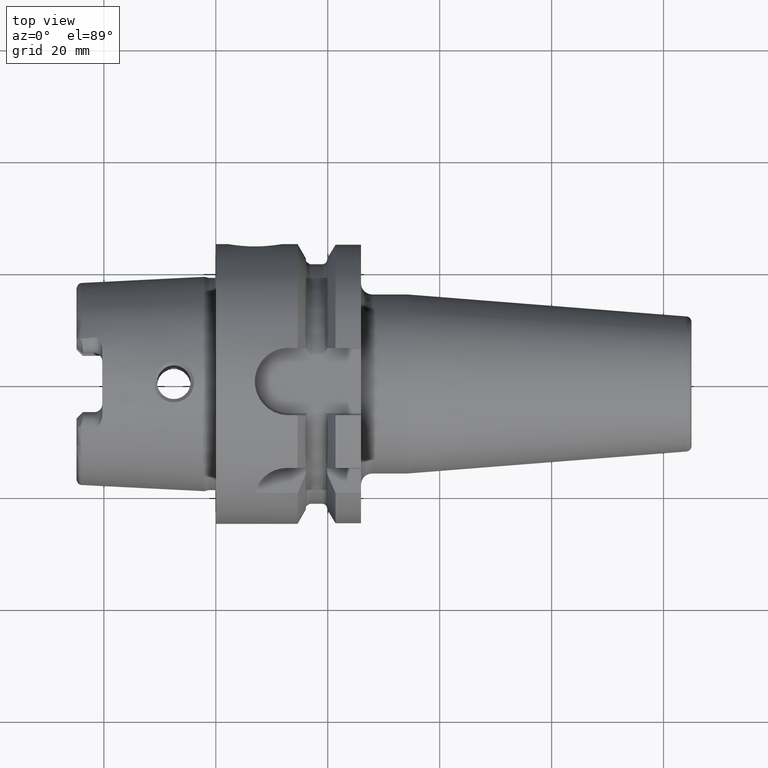
[diagram: clean part render]
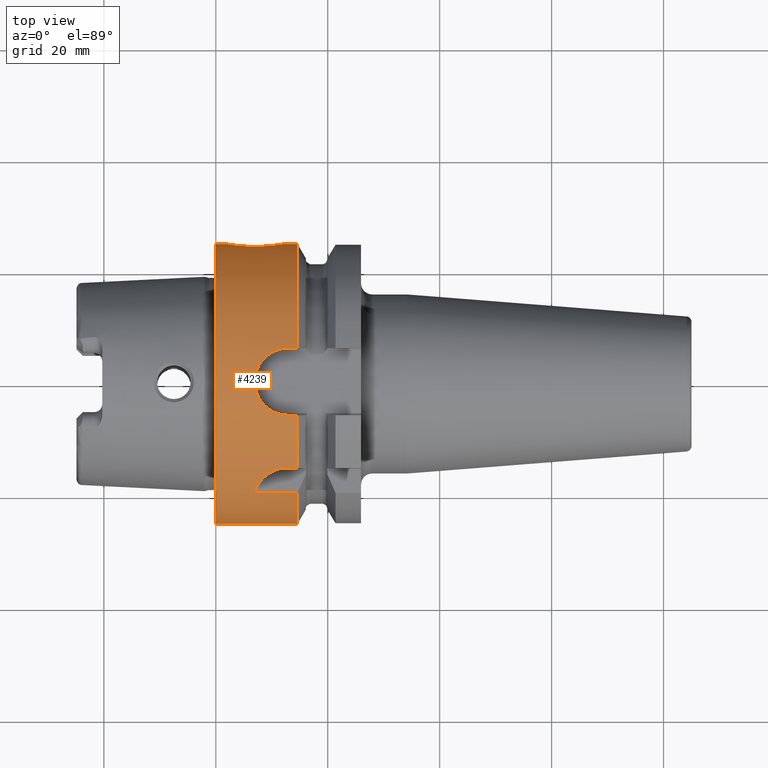
[diagram: same view with one face highlighted and labeled with its STEP entity id]
A machine part, top view. The second image highlights one B-rep face of the part: STEP entity #4239.
In plain terms, the highlighted cylindrical surface (partial cylindrical patch) has radius 25 mm, axis along (1, 0, 0).
Its self-contained STEP definition (entity closure, byte-faithful):
#867=CARTESIAN_POINT('',(0.E0,0.E0,0.E0));
#868=DIRECTION('',(1.E0,0.E0,0.E0));
#869=DIRECTION('',(0.E0,1.E0,0.E0));
#870=AXIS2_PLACEMENT_3D('',#867,#868,#869);
#887=CARTESIAN_POINT('',(1.2E1,2.5E1,1.526170039412E-14));
#888=CARTESIAN_POINT('',(1.2E1,2.5E1,1.396361669566E-1));
#889=CARTESIAN_POINT('',(1.198839559876E1,2.499767503671E1,4.188551199645E-1));
#890=CARTESIAN_POINT('',(1.193487591412E1,2.498702525719E1,8.411355470880E-1));
#891=CARTESIAN_POINT('',(1.184588884629E1,2.496956318530E1,1.255556682962E0));
#892=CARTESIAN_POINT('',(1.172437073918E1,2.494621805665E1,1.654326844388E0));
#893=CARTESIAN_POINT('',(1.157233803758E1,2.491780457859E1,2.037765396024E0));
#894=CARTESIAN_POINT('',(1.137826090774E1,2.488280033899E1,2.428957637124E0));
#895=CARTESIAN_POINT('',(1.112593169286E1,2.483941608179E1,2.839794746863E0));
#896=CARTESIAN_POINT('',(1.078966073596E1,2.478533925893E1,3.279662427458E0));
#897=CARTESIAN_POINT('',(1.034920049245E1,2.472123687765E1,3.731964970310E0));
#898=CARTESIAN_POINT('',(9.810568187861E0,2.465328264736E1,4.155812761009E0));
#899=CARTESIAN_POINT('',(9.171139758796E0,2.458785937757E1,4.524792131194E0));
#900=CARTESIAN_POINT('',(8.466271578711E0,2.453509771841E1,4.800556799822E0));
#901=CARTESIAN_POINT('',(7.720798631611E0,2.450179247679E1,4.966438431029E0));
#902=CARTESIAN_POINT('',(7.239977653175E0,2.449489742783E1,5.E0));
#903=CARTESIAN_POINT('',(7.E0,2.449489742783E1,5.E0));
#905=CARTESIAN_POINT('',(1.460806716851E1,0.E0,0.E0));
#906=DIRECTION('',(1.E0,0.E0,0.E0));
#907=DIRECTION('',(0.E0,1.E0,0.E0));
#908=AXIS2_PLACEMENT_3D('',#905,#906,#907);
#910=DIRECTION('',(1.E0,0.E0,0.E0));
#911=VECTOR('',#910,1.640567168511E0);
#912=CARTESIAN_POINT('',(1.29675E1,6.0175E0,2.426498905316E1));
#913=LINE('',#912,#911);
#914=CARTESIAN_POINT('',(1.29675E1,-6.0175E0,2.426498905316E1));
#915=CARTESIAN_POINT('',(1.267001977106E1,-6.0175E0,2.426498905316E1));
#916=CARTESIAN_POINT('',(1.208014574037E1,-5.974264320289E0,2.427577944586E1));
#917=CARTESIAN_POINT('',(1.119398879761E1,-5.773912792451E0,2.432458918315E1));
#918=CARTESIAN_POINT('',(1.035629865204E1,-5.446281307968E0,2.440062930721E1));
#919=CARTESIAN_POINT('',(9.570549924165E0,-4.994525095911E0,2.449784203663E1));
#920=CARTESIAN_POINT('',(8.859335655751E0,-4.428424444987E0,2.460735616990E1));
#921=CARTESIAN_POINT('',(8.237705259596E0,-3.756976706063E0,2.471958631858E1));
#922=CARTESIAN_POINT('',(7.729434557517E0,-3.007811120107E0,2.482263381281E1));
#923=CARTESIAN_POINT('',(7.337924838101E0,-2.188228602670E0,2.490880688784E1));
#924=CARTESIAN_POINT('',(7.076723724624E0,-1.332816222257E0,2.496957642541E1));
#925=CARTESIAN_POINT('',(6.944313494671E0,-4.437817595373E-1,2.500135908732E1));
#926=CARTESIAN_POINT('',(6.944380657024E0,4.447153631879E-1,2.500134275233E1));
#927=CARTESIAN_POINT('',(7.076937145034E0,1.333751794457E0,2.496952581905E1));
#928=CARTESIAN_POINT('',(7.338254277846E0,2.189079804056E0,2.490873170650E1));
#929=CARTESIAN_POINT('',(7.729918562096E0,3.008648084777E0,2.482253139083E1));
#930=CARTESIAN_POINT('',(8.238250048826E0,3.757671688176E0,2.471948033175E1));
#931=CARTESIAN_POINT('',(8.860113884246E0,4.429136984953E0,2.460722669885E1));
#932=CARTESIAN_POINT('',(9.571194326808E0,4.994971608218E0,2.449775036144E1));
#933=CARTESIAN_POINT('',(1.035742514871E1,5.446831304653E0,2.440050633562E1));
#934=CARTESIAN_POINT('',(1.119482197413E1,5.774135809015E0,2.432453475726E1));
#935=CARTESIAN_POINT('',(1.208047877402E1,5.974292572348E0,2.427577245256E1));
#936=CARTESIAN_POINT('',(1.267012654017E1,6.0175E0,2.426498905316E1));
#937=CARTESIAN_POINT('',(1.29675E1,6.0175E0,2.426498905316E1));
#939=DIRECTION('',(1.E0,0.E0,0.E0));
#940=VECTOR('',#939,1.640567168511E0);
#941=CARTESIAN_POINT('',(1.29675E1,-6.0175E0,2.426498905316E1));
#942=LINE('',#941,#940);
#943=CARTESIAN_POINT('',(1.460806716851E1,0.E0,0.E0));
#944=DIRECTION('',(1.E0,0.E0,0.E0));
#945=DIRECTION('',(0.E0,-2.407E-1,9.705995621264E-1));
#946=AXIS2_PLACEMENT_3D('',#943,#944,#945);
#948=DIRECTION('',(1.E0,0.E0,0.E0));
#949=VECTOR('',#948,1.914380895625E0);
#950=CARTESIAN_POINT('',(1.269368627289E1,-1.535E1,1.973265060756E1));
#951=LINE('',#950,#949);
#952=CARTESIAN_POINT('',(7.014312287542E0,-1.941487888938E1,1.575000188791E1));
#953=CARTESIAN_POINT('',(7.105107318717E0,-1.914840507931E1,1.607848164927E1));
#954=CARTESIAN_POINT('',(7.322191474670E0,-1.863555411155E1,1.667660984110E1));
#955=CARTESIAN_POINT('',(7.728432422807E0,-1.795161569204E1,1.740753268153E1));
#956=CARTESIAN_POINT('',(8.205411309503E0,-1.734358110205E1,1.801135406510E1));
#957=CARTESIAN_POINT('',(8.746642197198E0,-1.681053757601E1,1.850812745683E1));
#958=CARTESIAN_POINT('',(9.330788720679E0,-1.636318781531E1,1.890349167782E1));
#959=CARTESIAN_POINT('',(9.958756853740E0,-1.599312537632E1,1.921667707056E1));
#960=CARTESIAN_POINT('',(1.061916482915E1,-1.570515606782E1,1.945200283558E1));
#961=CARTESIAN_POINT('',(1.129301090073E1,-1.550158905615E1,1.961414253632E1));
#962=CARTESIAN_POINT('',(1.199118851982E1,-1.537734260728E1,1.971142996702E1));
#963=CARTESIAN_POINT('',(1.245842128019E1,-1.535E1,1.973265060756E1));
#964=CARTESIAN_POINT('',(1.269368627289E1,-1.535E1,1.973265060756E1));
#966=DIRECTION('',(1.E0,6.189435976035E-8,-2.143060964371E-7));
#967=VECTOR('',#966,7.275739392870E0);
#968=CARTESIAN_POINT('',(7.332327775641E0,-1.973265105789E1,1.535000155924E1));
#969=LINE('',#968,#967);
#970=CARTESIAN_POINT('',(1.460806716851E1,0.E0,0.E0));
#971=DIRECTION('',(1.E0,0.E0,0.E0));
#972=DIRECTION('',(0.E0,-7.893060243024E-1,6.14E-1));
#973=AXIS2_PLACEMENT_3D('',#970,#971,#972);
#975=CARTESIAN_POINT('',(7.E0,2.449489742783E1,5.E0));
#976=CARTESIAN_POINT('',(6.761456629891E0,2.449489742783E1,5.E0));
#977=CARTESIAN_POINT('',(6.284099558964E0,2.450171778544E1,4.966797325618E0));
#978=CARTESIAN_POINT('',(5.546742600617E0,2.453440702590E1,4.804016519566E0));
#979=CARTESIAN_POINT('',(4.849527951524E0,2.458610035104E1,4.534169510600E0));
#980=CARTESIAN_POINT('',(4.214625421388E0,2.465043937623E1,4.172421115045E0));
#981=CARTESIAN_POINT('',(3.675906642440E0,2.471783362875E1,3.754264982352E0));
#982=CARTESIAN_POINT('',(3.232294856577E0,2.478197114054E1,3.304945144176E0));
#983=CARTESIAN_POINT('',(2.891885681669E0,2.483644711618E1,2.865655033406E0));
#984=CARTESIAN_POINT('',(2.635677379664E0,2.488034059450E1,2.454109288364E0));
#985=CARTESIAN_POINT('',(2.437783056705E0,2.491594110500E1,2.060613876008E0));
#986=CARTESIAN_POINT('',(2.282268438507E0,2.494495577226E1,1.673589009772E0));
#987=CARTESIAN_POINT('',(2.157746089973E0,2.496885447423E1,1.270094617234E0));
#988=CARTESIAN_POINT('',(2.066662314600E0,2.498672004420E1,8.509436418297E-1));
#989=CARTESIAN_POINT('',(2.011881569252E0,2.499761939888E1,4.238045504715E-1));
#990=CARTESIAN_POINT('',(2.E0,2.5E1,1.412957668624E-1));
#991=CARTESIAN_POINT('',(2.E0,2.5E1,2.455170019084E-14));
#1083=DIRECTION('',(-1.E0,0.E0,-1.125531109613E-14));
#1084=VECTOR('',#1083,2.E0);
#1085=CARTESIAN_POINT('',(2.E0,2.5E1,2.455170019084E-14));
#1086=LINE('',#1085,#1084);
#1087=DIRECTION('',(-1.E0,0.E0,0.E0));
#1088=VECTOR('',#1087,1.460806716851E1);
#1089=CARTESIAN_POINT('',(1.460806716851E1,-2.5E1,0.E0));
#1090=LINE('',#1089,#1088);
#1144=DIRECTION('',(-1.E0,0.E0,0.E0));
#1145=VECTOR('',#1144,2.608067168511E0);
#1146=CARTESIAN_POINT('',(1.460806716851E1,2.5E1,0.E0));
#1147=LINE('',#1146,#1145);
#1172=CARTESIAN_POINT('',(1.460806716851E1,-6.0175E0,2.426498905316E1));
#1451=CARTESIAN_POINT('',(1.460806716851E1,6.0175E0,2.426498905316E1));
#1740=CARTESIAN_POINT('',(1.460806716851E1,-1.973265060756E1,1.535E1));
#1778=CARTESIAN_POINT('',(7.332327775641E0,-1.973265105789E1,1.535000155924E1));
#1779=CARTESIAN_POINT('',(7.295780106495E0,-1.969754499718E1,1.539513091624E1));
#1780=CARTESIAN_POINT('',(7.223506935393E0,-1.962718499079E1,1.548493811909E1));
#1781=CARTESIAN_POINT('',(7.117483182884E0,-1.952121773706E1,1.561831135207E1));
#1782=CARTESIAN_POINT('',(7.048432084530E0,-1.945036301196E1,1.570626094349E1));
#1783=CARTESIAN_POINT('',(7.014312287542E0,-1.941487888938E1,1.575000188791E1));
#1808=CARTESIAN_POINT('',(1.460806716851E1,-1.535E1,1.973265060756E1));
#2935=VERTEX_POINT('',#1172);
#2946=VERTEX_POINT('',#1451);
#3013=VERTEX_POINT('',#1740);
#3017=VERTEX_POINT('',#1808);
#3030=CARTESIAN_POINT('',(1.29675E1,6.0175E0,2.426498905316E1));
#3031=VERTEX_POINT('',#3030);
#3032=CARTESIAN_POINT('',(1.29675E1,-6.0175E0,2.426498905316E1));
#3033=VERTEX_POINT('',#3032);
#3074=CARTESIAN_POINT('',(7.014310733153E0,-1.941487894986E1,1.575001002367E1));
#3076=VERTEX_POINT('',#3074);
#3078=CARTESIAN_POINT('',(7.332335239587E0,-1.973265330952E1,1.535E1));
#3080=VERTEX_POINT('',#3078);
#3082=CARTESIAN_POINT('',(1.269368627289E1,-1.535E1,1.973265060756E1));
#3083=VERTEX_POINT('',#3082);
#3104=CARTESIAN_POINT('',(0.E0,2.5E1,0.E0));
#3105=CARTESIAN_POINT('',(0.E0,-2.5E1,0.E0));
#3106=VERTEX_POINT('',#3104);
#3107=VERTEX_POINT('',#3105);
#3108=CARTESIAN_POINT('',(1.460806716851E1,2.5E1,0.E0));
#3109=VERTEX_POINT('',#3108);
#3110=CARTESIAN_POINT('',(1.460806716851E1,-2.5E1,0.E0));
#3111=VERTEX_POINT('',#3110);
#3180=CARTESIAN_POINT('',(7.E0,2.449489742783E1,5.E0));
#3181=VERTEX_POINT('',#3180);
#3208=VERTEX_POINT('',#887);
#3209=VERTEX_POINT('',#991);
#4201=CARTESIAN_POINT('',(-2.74425E1,0.E0,0.E0));
#4202=DIRECTION('',(1.E0,0.E0,0.E0));
#4203=DIRECTION('',(0.E0,-1.E0,0.E0));
#4204=AXIS2_PLACEMENT_3D('',#4201,#4202,#4203);
#4205=CYLINDRICAL_SURFACE('',#4204,2.5E1);
#4207=ORIENTED_EDGE('',*,*,#4206,.F.);
#4209=ORIENTED_EDGE('',*,*,#4208,.F.);
#4211=ORIENTED_EDGE('',*,*,#4210,.T.);
#4213=ORIENTED_EDGE('',*,*,#4212,.F.);
#4215=ORIENTED_EDGE('',*,*,#4214,.F.);
#4217=ORIENTED_EDGE('',*,*,#4216,.T.);
#4219=ORIENTED_EDGE('',*,*,#4218,.T.);
#4221=ORIENTED_EDGE('',*,*,#4220,.F.);
#4223=ORIENTED_EDGE('',*,*,#4222,.F.);
#4225=ORIENTED_EDGE('',*,*,#4224,.F.);
#4227=ORIENTED_EDGE('',*,*,#4226,.T.);
#4229=ORIENTED_EDGE('',*,*,#4228,.T.);
#4231=ORIENTED_EDGE('',*,*,#4230,.T.);
#4232=ORIENTED_EDGE('',*,*,#4190,.F.);
#4234=ORIENTED_EDGE('',*,*,#4233,.F.);
#4236=ORIENTED_EDGE('',*,*,#4235,.F.);
#4237=EDGE_LOOP('',(#4207,#4209,#4211,#4213,#4215,#4217,#4219,#4221,#4223,#4225,
#4227,#4229,#4231,#4232,#4234,#4236));
#4238=FACE_OUTER_BOUND('',#4237,.F.);
#4239=ADVANCED_FACE('',(#4238),#4205,.T.);
#871=CIRCLE('',#870,2.5E1);
#904=B_SPLINE_CURVE_WITH_KNOTS('',3,(#887,#888,#889,#890,#891,#892,#893,#894,
#895,#896,#897,#898,#899,#900,#901,#902,#903),.UNSPECIFIED.,.F.,.F.,(4,1,1,1,1,
1,1,1,1,1,1,1,1,1,4),(0.E0,7.142857142857E-2,1.428571428571E-1,
2.142857142857E-1,2.857142857143E-1,3.571428571429E-1,4.285714285714E-1,5.E-1,
5.714285714286E-1,6.428571428571E-1,7.142857142857E-1,7.857142857143E-1,
8.571428571429E-1,9.285714285714E-1,1.E0),.UNSPECIFIED.);
#909=CIRCLE('',#908,2.5E1);
#938=B_SPLINE_CURVE_WITH_KNOTS('',3,(#914,#915,#916,#917,#918,#919,#920,#921,
#922,#923,#924,#925,#926,#927,#928,#929,#930,#931,#932,#933,#934,#935,#936,
#937),.UNSPECIFIED.,.F.,.F.,(4,1,1,1,1,1,1,1,1,1,1,1,1,1,1,1,1,1,1,1,1,4),(0.E0,
4.761904761905E-2,9.523809523810E-2,1.428571428571E-1,1.904761904762E-1,
2.380952380952E-1,2.857142857143E-1,3.333333333333E-1,3.809523809524E-1,
4.285714285714E-1,4.761904761905E-1,5.238095238095E-1,5.714285714286E-1,
6.190476190476E-1,6.666666666667E-1,7.142857142857E-1,7.619047619048E-1,
8.095238095238E-1,8.571428571429E-1,9.047619047619E-1,9.523809523810E-1,1.E0),
.UNSPECIFIED.);
#947=CIRCLE('',#946,2.5E1);
#965=B_SPLINE_CURVE_WITH_KNOTS('',3,(#952,#953,#954,#955,#956,#957,#958,#959,
#960,#961,#962,#963,#964),.UNSPECIFIED.,.F.,.F.,(4,1,1,1,1,1,1,1,1,1,4),(0.E0,
1.E-1,2.E-1,3.E-1,4.E-1,5.E-1,6.E-1,7.E-1,8.E-1,9.E-1,1.E0),.UNSPECIFIED.);
#974=CIRCLE('',#973,2.5E1);
#992=B_SPLINE_CURVE_WITH_KNOTS('',3,(#975,#976,#977,#978,#979,#980,#981,#982,
#983,#984,#985,#986,#987,#988,#989,#990,#991),.UNSPECIFIED.,.F.,.F.,(4,1,1,1,1,
1,1,1,1,1,1,1,1,1,4),(0.E0,7.142857142857E-2,1.428571428571E-1,
2.142857142857E-1,2.857142857143E-1,3.571428571429E-1,4.285714285714E-1,5.E-1,
5.714285714286E-1,6.428571428571E-1,7.142857142857E-1,7.857142857143E-1,
8.571428571429E-1,9.285714285714E-1,1.E0),.UNSPECIFIED.);
#1784=B_SPLINE_CURVE_WITH_KNOTS('',3,(#1778,#1779,#1780,#1781,#1782,#1783),
.UNSPECIFIED.,.F.,.F.,(4,1,1,4),(0.E0,3.333333333333E-1,6.666666666667E-1,1.E0),
.UNSPECIFIED.);
#4190=EDGE_CURVE('',#3106,#3107,#871,.T.);
#4206=EDGE_CURVE('',#3208,#3181,#904,.T.);
#4208=EDGE_CURVE('',#3109,#3208,#1147,.T.);
#4210=EDGE_CURVE('',#3109,#2946,#909,.T.);
#4212=EDGE_CURVE('',#3031,#2946,#913,.T.);
#4214=EDGE_CURVE('',#3033,#3031,#938,.T.);
#4216=EDGE_CURVE('',#3033,#2935,#942,.T.);
#4218=EDGE_CURVE('',#2935,#3017,#947,.T.);
#4220=EDGE_CURVE('',#3083,#3017,#951,.T.);
#4222=EDGE_CURVE('',#3076,#3083,#965,.T.);
#4224=EDGE_CURVE('',#3080,#3076,#1784,.T.);
#4226=EDGE_CURVE('',#3080,#3013,#969,.T.);
#4228=EDGE_CURVE('',#3013,#3111,#974,.T.);
#4230=EDGE_CURVE('',#3111,#3107,#1090,.T.);
#4233=EDGE_CURVE('',#3209,#3106,#1086,.T.);
#4235=EDGE_CURVE('',#3181,#3209,#992,.T.);